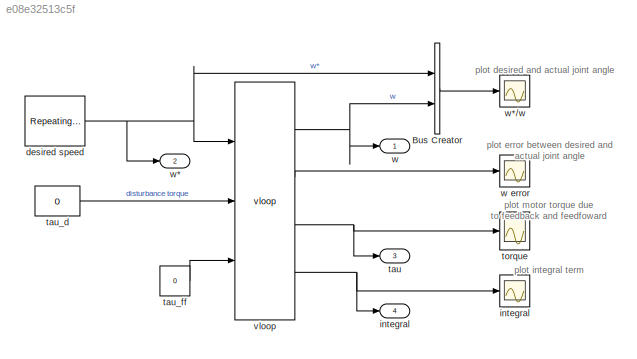
MODEL slx_e08e32513c5f
KIND model
CONFIG AbsTol = auto
CONFIG FixedStep = auto
CONFIG InitFcn = G = 107.815;
CONFIG MaxStep = auto
CONFIG MinStep = auto
CONFIG RelTol = 1e-3
CONFIG SampleTimeConstraint = Unconstrained
CONFIG Solver = ode15s
CONFIG SolverMode = Auto
CONFIG SolverName = ode15s
CONFIG StartTime = 0.0
CONFIG StopTime = 1.0
BLOCK [BusCreator] Bus Creator
  DisplayOption = bar
  InheritFromInputs = on
  Inputs = 2
  Ports = [2, 1]
BLOCK [Reference] desired speed  REF=simulink/Sources/Repeating
Sequence
  Ports = [0, 1]
  SourceBlock = simulink/Sources/Repeating\nSequence
  SourceType = Repeating table
  rep_seq_t = [0 1 3 4 6]/10
  rep_seq_y = [0 0 50 50 0]
BLOCK [Outport] integral
  IconDisplay = Port number
  Port = 4
BLOCK [Scope] integral 
  DataFormat = StructureWithTime
  Decimation = 1
  Floating = off
  Grid = on
  LimitDataPoints = on
  MaxDataPoints = 5000
  NumInputPorts = 1
  Ports = [1]
  SampleInput = off
  SampleTime = -1
  SaveName = ScopeData3
  SaveToWorkspace = off
  ShowLegends = off
  TickLabels = OneTimeTick
  TimeRange = 1
  YMax = 1.82214
  YMin = -1.00000
  ZoomMode = on
BLOCK [Outport] tau
  IconDisplay = Port number
  Port = 3
BLOCK [Constant] tau_d
  Value = 0
BLOCK [Constant] tau_ff
  Value = 0
BLOCK [Scope] torque
  DataFormat = StructureWithTime
  Decimation = 1
  Floating = off
  Grid = on
  LimitDataPoints = on
  MaxDataPoints = 5000
  NumInputPorts = 1
  Ports = [1]
  SampleInput = off
  SampleTime = -1
  SaveName = ScopeData1
  SaveToWorkspace = off
  ShowLegends = off
  TickLabels = OneTimeTick
  TimeRange = 1
  YMax = 1.125
  YMin = -1.125
  ZoomMode = on
BLOCK [Reference] vloop  REF=roblocks/Arm/vloop  (lib defined in mdl_2a292b13c81b, mdl_69400f8cfe22, +12 more)
  B = 817e-6
  J = 580e-6
  Ki = 0
  Km = 0.228
  Kv = 0.6
  Ports = [3, 4]
  SourceBlock = roblocks/Arm/vloop
  T = 0.001
  tau_max = 0.9
BLOCK [Outport] w
  IconDisplay = Port number
BLOCK [Scope] w error
  DataFormat = StructureWithTime
  Decimation = 1
  Floating = off
  Grid = on
  LimitDataPoints = on
  MaxDataPoints = 5000
  NumInputPorts = 1
  Ports = [1]
  SampleInput = off
  SampleTime = -1
  SaveName = ScopeData2
  SaveToWorkspace = off
  ShowLegends = off
  TickLabels = OneTimeTick
  TimeRange = 1
  YMax = 124.77684
  YMin = -124.77684
  ZoomMode = on
BLOCK [Outport] w*
  IconDisplay = Port number
  Port = 2
BLOCK [Scope] w*//w
  DataFormat = StructureWithTime
  Decimation = 1
  Floating = off
  Grid = on
  LimitDataPoints = on
  MaxDataPoints = 5000
  NumInputPorts = 1
  Ports = [1]
  SampleInput = off
  SampleTime = -1
  SaveName = ScopeData
  SaveToWorkspace = off
  ShowLegends = on
  TickLabels = OneTimeTick
  TimeRange = 1
  YMax = 64.20111
  YMin = -64.20111
  ZoomMode = on
ANNOTATION (root): plot desired and actual joint angle
ANNOTATION (root): plot error between desired and actual joint angle
ANNOTATION (root): plot integral term
ANNOTATION (root): plot motor torque due to feedback and feedfoward
LINE Bus Creator:1 -> w*//w:1
NET desired speed:1 -> Bus Creator:1, vloop:1, w*:1
LINE tau_d:1 -> vloop:2
LINE tau_ff:1 -> vloop:3
NET vloop:1 -> Bus Creator:2, w:1
LINE vloop:2 -> w error:1
NET vloop:3 -> tau:1, torque:1
NET vloop:4 -> integral :1, integral:1
note: NET lines group one-source signal fan-out (src -> all destinations, sorted); 1:1 wires keep LINE
